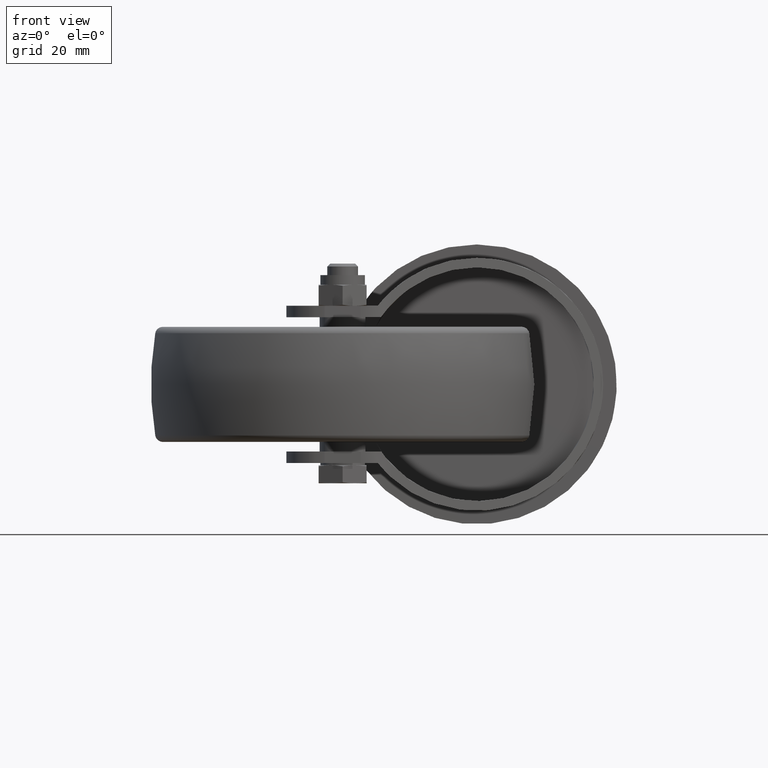
[diagram: clean part render]
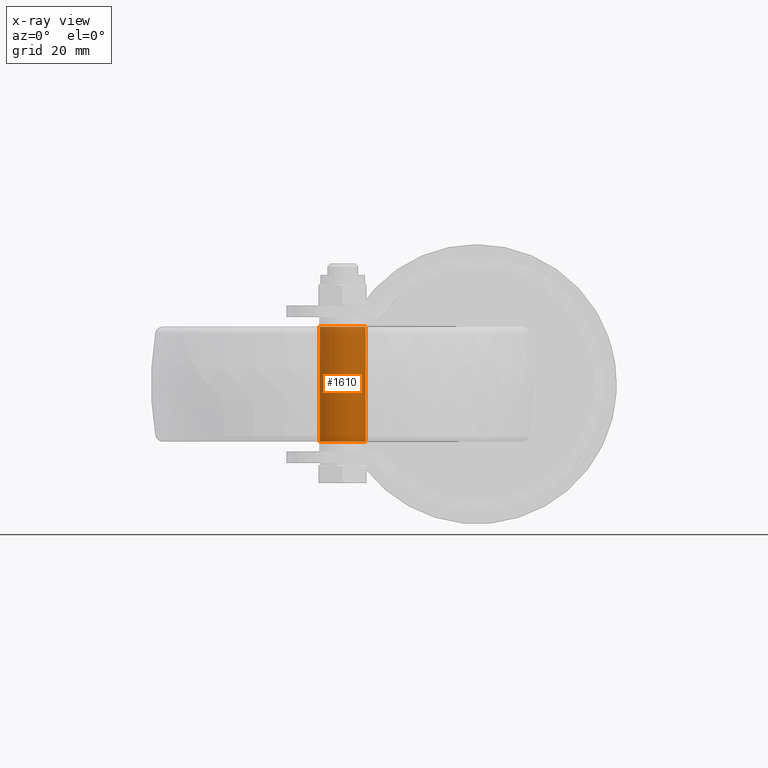
[diagram: x-ray — body ghosted, one internal face saturated and labeled with its STEP entity id]
A machine part, front view, then the same camera in x-ray: the body is ghosted and one INTERNAL B-rep face — a face not visible from any outside direction — is saturated and labeled: STEP entity #1610.
In plain terms, the highlighted cylindrical surface (bore or boss wall) has radius 6 mm, axis along (0, 0, 1).
Its self-contained STEP definition (entity closure, byte-faithful):
#299=FACE_OUTER_BOUND('',#421,.T.);
#421=EDGE_LOOP('',(#1414,#1415,#1416,#1417));
#514=CIRCLE('',#1902,6.);
#515=CIRCLE('',#1903,6.);
#615=LINE('',#2978,#679);
#679=VECTOR('',#2345,6.);
#797=VERTEX_POINT('',#2975);
#798=VERTEX_POINT('',#2977);
#1006=EDGE_CURVE('',#797,#797,#514,.T.);
#1007=EDGE_CURVE('',#797,#798,#615,.T.);
#1008=EDGE_CURVE('',#798,#798,#515,.T.);
#1414=ORIENTED_EDGE('',*,*,#1006,.F.);
#1415=ORIENTED_EDGE('',*,*,#1007,.T.);
#1416=ORIENTED_EDGE('',*,*,#1008,.T.);
#1417=ORIENTED_EDGE('',*,*,#1007,.F.);
#1525=CYLINDRICAL_SURFACE('',#1901,6.);
#1610=ADVANCED_FACE('',(#299),#1525,.F.);
#1901=AXIS2_PLACEMENT_3D('',#2974,#2341,#2342);
#1902=AXIS2_PLACEMENT_3D('',#2976,#2343,#2344);
#1903=AXIS2_PLACEMENT_3D('',#2979,#2346,#2347);
#2341=DIRECTION('center_axis',(0.,0.,1.));
#2342=DIRECTION('ref_axis',(1.,0.,0.));
#2343=DIRECTION('center_axis',(0.,0.,1.));
#2344=DIRECTION('ref_axis',(1.,0.,0.));
#2345=DIRECTION('',(0.,0.,1.));
#2346=DIRECTION('center_axis',(0.,0.,1.));
#2347=DIRECTION('ref_axis',(1.,0.,0.));
#2974=CARTESIAN_POINT('Origin',(0.,0.,15.));
#2975=CARTESIAN_POINT('',(-6.,-7.34788079488412E-16,-15.));
#2976=CARTESIAN_POINT('Origin',(0.,0.,-15.));
#2977=CARTESIAN_POINT('',(-6.,-7.34788079488412E-16,15.));
#2978=CARTESIAN_POINT('',(-6.,-7.34788079488412E-16,15.));
#2979=CARTESIAN_POINT('Origin',(0.,0.,15.));